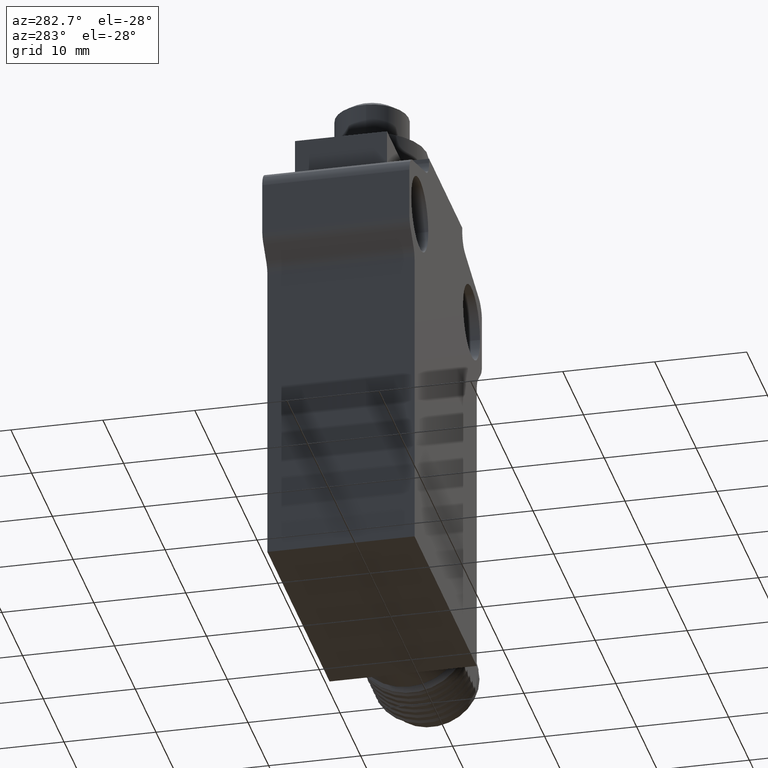
[diagram: clean part render]
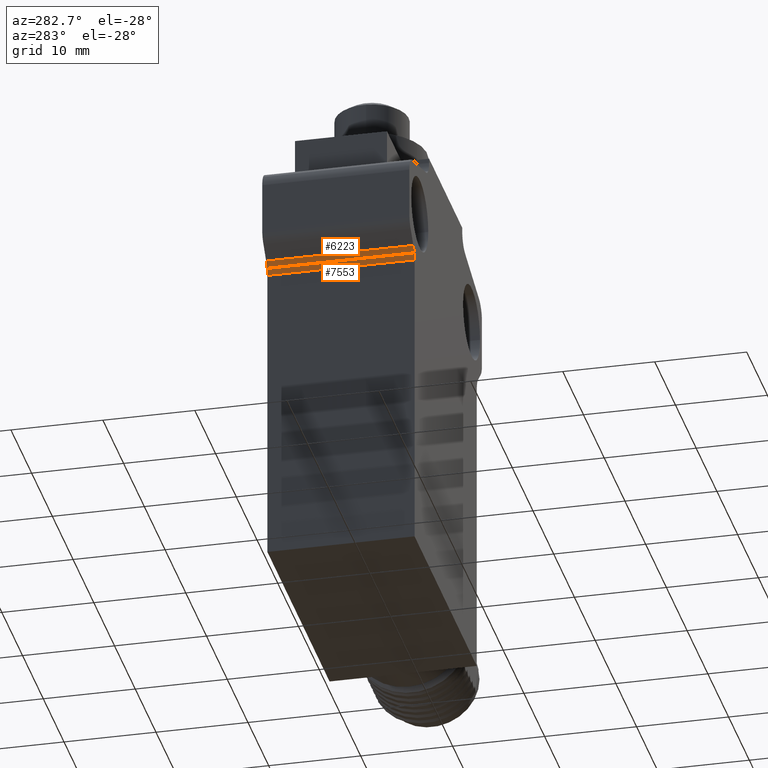
[diagram: same view with one multi-face feature highlighted, each face labeled with its STEP entity id]
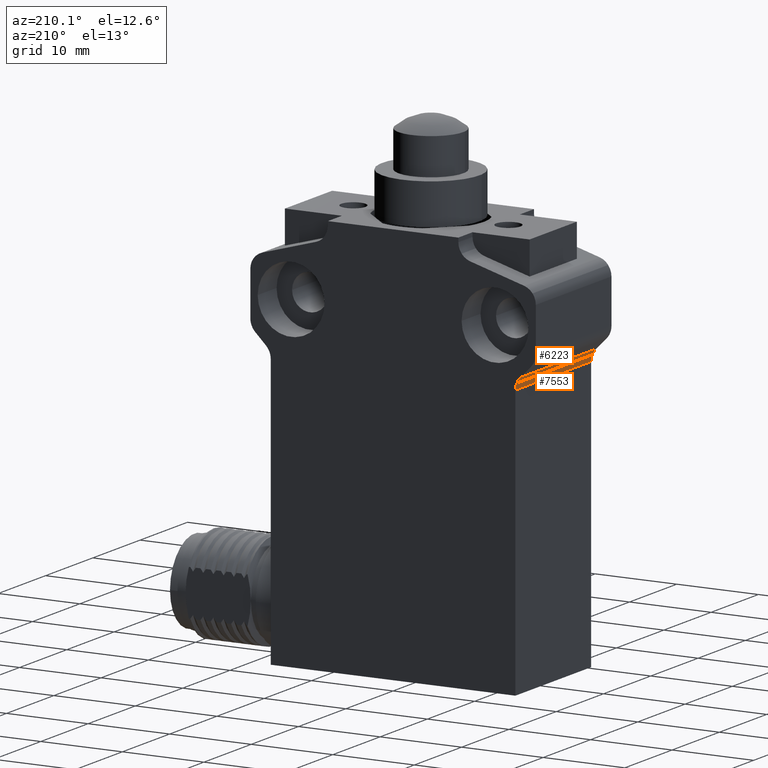
[diagram: same view with one multi-face feature highlighted, each face labeled with its STEP entity id]
A machine part, auxiliary view. The highlighted faces form ONE feature: a constant-radius fillet chain: 2 tangent blend faces with common blend radius 2 mm. The faces share edges in the B-rep.
A second angle (auxiliary view) of the same feature is appended — it is thin or edge-on in the first view.
Their STEP definitions:
[1] entity #6223 (Cylinder):
#62 = DIRECTION ( 'NONE',  ( 0.0000000000000000000, 1.000000000000000000, 0.0000000000000000000 ) ) ;
#143 = LINE ( 'NONE', #6695, #4529 ) ;
#713 = FACE_OUTER_BOUND ( 'NONE', #7207, .T. ) ;
#767 = EDGE_CURVE ( 'NONE', #834, #5688, #6756, .T. ) ;
#834 = VERTEX_POINT ( 'NONE', #6257 ) ;
#1165 = DIRECTION ( 'NONE',  ( 0.0000000000000000000, 1.000000000000000000, 0.0000000000000000000 ) ) ;
#1176 = AXIS2_PLACEMENT_3D ( 'NONE', #5853, #7744, #4043 ) ;
#1700 = ORIENTED_EDGE ( 'NONE', *, *, #5291, .T. ) ;
#2367 = CARTESIAN_POINT ( 'NONE',  ( -0.5965449186998986741, -2.797412204724409697E-16, -0.2367346559061422051 ) ) ;
#2465 = DIRECTION ( 'NONE',  ( 0.9238795325112868495, 0.0000000000000000000, 0.3826834323650891156 ) ) ;
#2470 = VERTEX_POINT ( 'NONE', #2638 ) ;
#2544 = CARTESIAN_POINT ( 'NONE',  ( -0.6692913385826771977, -2.797412204724409697E-16, -0.2668672096356767831 ) ) ;
#2638 = CARTESIAN_POINT ( 'NONE',  ( -0.5965449186998986741, -0.6299212598425196763, -0.2367346559061422051 ) ) ;
#2664 = ORIENTED_EDGE ( 'NONE', *, *, #767, .T. ) ;
#2742 = CYLINDRICAL_SURFACE ( 'NONE', #1176, 0.07874015748031494566 ) ;
#2753 = CIRCLE ( 'NONE', #6397, 0.07874015748031494566 ) ;
#3043 = CARTESIAN_POINT ( 'NONE',  ( -0.6136136392766496916, -0.6299212598425196763, -0.2111895103296496101 ) ) ;
#3359 = AXIS2_PLACEMENT_3D ( 'NONE', #2544, #62, #4370 ) ;
#3672 = VECTOR ( 'NONE', #7994, 39.37007874015748143 ) ;
#4043 = DIRECTION ( 'NONE',  ( 0.9238795325112868495, 0.0000000000000000000, 0.3826834323650891156 ) ) ;
#4370 = DIRECTION ( 'NONE',  ( 0.9238795325112868495, 0.0000000000000000000, 0.3826834323650891156 ) ) ;
#4529 = VECTOR ( 'NONE', #1165, 39.37007874015748143 ) ;
#4827 = VERTEX_POINT ( 'NONE', #5154 ) ;
#5075 = CARTESIAN_POINT ( 'NONE',  ( -0.6692913385826771977, -0.6299212598425196763, -0.2668672096356767831 ) ) ;
#5154 = CARTESIAN_POINT ( 'NONE',  ( -0.6136136392766496916, -0.6299212598425196763, -0.2111895103296496101 ) ) ;
#5291 = EDGE_CURVE ( 'NONE', #4827, #834, #6976, .T. ) ;
#5688 = VERTEX_POINT ( 'NONE', #2367 ) ;
#5853 = CARTESIAN_POINT ( 'NONE',  ( -0.6692913385826771977, -2.797412204724409697E-16, -0.2668672096356767831 ) ) ;
#6004 = EDGE_CURVE ( 'NONE', #2470, #5688, #143, .T. ) ;
#6123 = EDGE_CURVE ( 'NONE', #2470, #4827, #2753, .T. ) ;
#6223 = ADVANCED_FACE ( 'NONE', ( #713 ), #2742, .F. ) ;
#6257 = CARTESIAN_POINT ( 'NONE',  ( -0.6136136392766496916, -2.797412204724409697E-16, -0.2111895103296496101 ) ) ;
#6286 = DIRECTION ( 'NONE',  ( 0.0000000000000000000, -1.000000000000000000, 0.0000000000000000000 ) ) ;
#6397 = AXIS2_PLACEMENT_3D ( 'NONE', #5075, #6286, #2465 ) ;
#6695 = CARTESIAN_POINT ( 'NONE',  ( -0.5965449186998987852, -2.797412204724409697E-16, -0.2367346559061422051 ) ) ;
#6756 = CIRCLE ( 'NONE', #3359, 0.07874015748031494566 ) ;
#6976 = LINE ( 'NONE', #3043, #3672 ) ;
#7057 = ORIENTED_EDGE ( 'NONE', *, *, #6123, .T. ) ;
#7207 = EDGE_LOOP ( 'NONE', ( #7936, #7057, #1700, #2664 ) ) ;
#7744 = DIRECTION ( 'NONE',  ( 0.0000000000000000000, 1.000000000000000000, 0.0000000000000000000 ) ) ;
#7936 = ORIENTED_EDGE ( 'NONE', *, *, #6004, .F. ) ;
#7994 = DIRECTION ( 'NONE',  ( 0.0000000000000000000, 1.000000000000000000, 0.0000000000000000000 ) ) ;
[2] entity #7553 (Cylinder):
#136 = ORIENTED_EDGE ( 'NONE', *, *, #1343, .T. ) ;
#143 = LINE ( 'NONE', #6695, #4529 ) ;
#250 = CARTESIAN_POINT ( 'NONE',  ( -0.5905511811023621549, -2.797412204724409697E-16, -0.2668672096356767831 ) ) ;
#899 = VERTEX_POINT ( 'NONE', #250 ) ;
#1160 = AXIS2_PLACEMENT_3D ( 'NONE', #1603, #2309, #4196 ) ;
#1165 = DIRECTION ( 'NONE',  ( 0.0000000000000000000, 1.000000000000000000, 0.0000000000000000000 ) ) ;
#1174 = LINE ( 'NONE', #2081, #5946 ) ;
#1343 = EDGE_CURVE ( 'NONE', #899, #6067, #1174, .T. ) ;
#1433 = CIRCLE ( 'NONE', #2914, 0.07874015748031494566 ) ;
#1521 = DIRECTION ( 'NONE',  ( 0.9238795325112868495, 0.0000000000000000000, 0.3826834323650891156 ) ) ;
#1603 = CARTESIAN_POINT ( 'NONE',  ( -0.6692913385826771977, -0.6299212598425196763, -0.2668672096356767831 ) ) ;
#1815 = FACE_OUTER_BOUND ( 'NONE', #5977, .T. ) ;
#1993 = AXIS2_PLACEMENT_3D ( 'NONE', #7469, #3763, #4960 ) ;
#2081 = CARTESIAN_POINT ( 'NONE',  ( -0.5905511811023621549, -2.797412204724409697E-16, -0.2668672096356767831 ) ) ;
#2309 = DIRECTION ( 'NONE',  ( 0.0000000000000000000, -1.000000000000000000, 0.0000000000000000000 ) ) ;
#2367 = CARTESIAN_POINT ( 'NONE',  ( -0.5965449186998986741, -2.797412204724409697E-16, -0.2367346559061422051 ) ) ;
#2470 = VERTEX_POINT ( 'NONE', #2638 ) ;
#2578 = CARTESIAN_POINT ( 'NONE',  ( -0.6692913385826771977, -2.797412204724409697E-16, -0.2668672096356767831 ) ) ;
#2606 = CIRCLE ( 'NONE', #1160, 0.07874015748031494566 ) ;
#2638 = CARTESIAN_POINT ( 'NONE',  ( -0.5965449186998986741, -0.6299212598425196763, -0.2367346559061422051 ) ) ;
#2710 = DIRECTION ( 'NONE',  ( 0.0000000000000000000, 1.000000000000000000, 0.0000000000000000000 ) ) ;
#2714 = EDGE_CURVE ( 'NONE', #5688, #899, #1433, .T. ) ;
#2914 = AXIS2_PLACEMENT_3D ( 'NONE', #2578, #2710, #1521 ) ;
#3087 = ORIENTED_EDGE ( 'NONE', *, *, #2714, .T. ) ;
#3191 = CYLINDRICAL_SURFACE ( 'NONE', #1993, 0.07874015748031494566 ) ;
#3763 = DIRECTION ( 'NONE',  ( 0.0000000000000000000, 1.000000000000000000, 0.0000000000000000000 ) ) ;
#4196 = DIRECTION ( 'NONE',  ( 0.9238795325112868495, 0.0000000000000000000, 0.3826834323650891156 ) ) ;
#4401 = EDGE_CURVE ( 'NONE', #6067, #2470, #2606, .T. ) ;
#4411 = CARTESIAN_POINT ( 'NONE',  ( -0.5905511811023621549, -0.6299212598425196763, -0.2668672096356767831 ) ) ;
#4529 = VECTOR ( 'NONE', #1165, 39.37007874015748143 ) ;
#4813 = ORIENTED_EDGE ( 'NONE', *, *, #4401, .T. ) ;
#4960 = DIRECTION ( 'NONE',  ( 0.9238795325112868495, 0.0000000000000000000, 0.3826834323650891156 ) ) ;
#5163 = DIRECTION ( 'NONE',  ( 0.0000000000000000000, -1.000000000000000000, 0.0000000000000000000 ) ) ;
#5688 = VERTEX_POINT ( 'NONE', #2367 ) ;
#5946 = VECTOR ( 'NONE', #5163, 39.37007874015748143 ) ;
#5977 = EDGE_LOOP ( 'NONE', ( #4813, #7247, #3087, #136 ) ) ;
#6004 = EDGE_CURVE ( 'NONE', #2470, #5688, #143, .T. ) ;
#6067 = VERTEX_POINT ( 'NONE', #4411 ) ;
#6695 = CARTESIAN_POINT ( 'NONE',  ( -0.5965449186998987852, -2.797412204724409697E-16, -0.2367346559061422051 ) ) ;
#7247 = ORIENTED_EDGE ( 'NONE', *, *, #6004, .T. ) ;
#7469 = CARTESIAN_POINT ( 'NONE',  ( -0.6692913385826771977, -2.797412204724409697E-16, -0.2668672096356767831 ) ) ;
#7553 = ADVANCED_FACE ( 'NONE', ( #1815 ), #3191, .F. ) ;